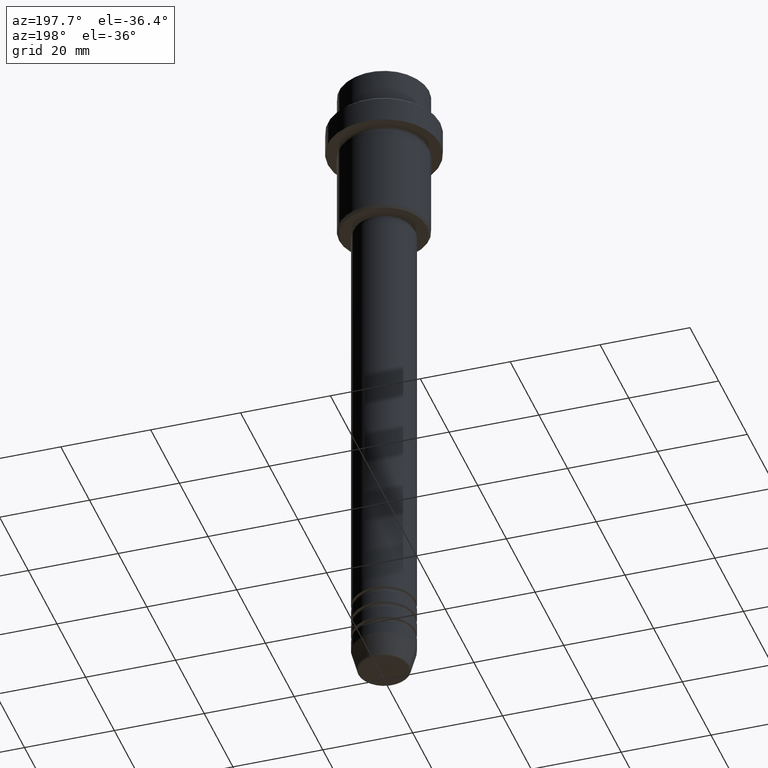
[diagram: clean part render]
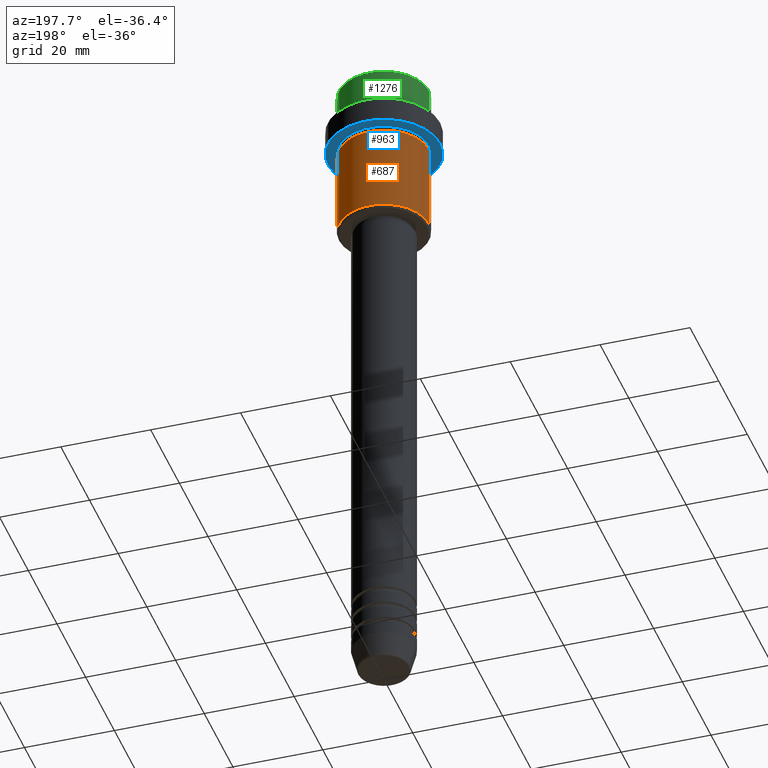
[diagram: same view with three faces highlighted in distinct colors, each labeled with its STEP entity id]
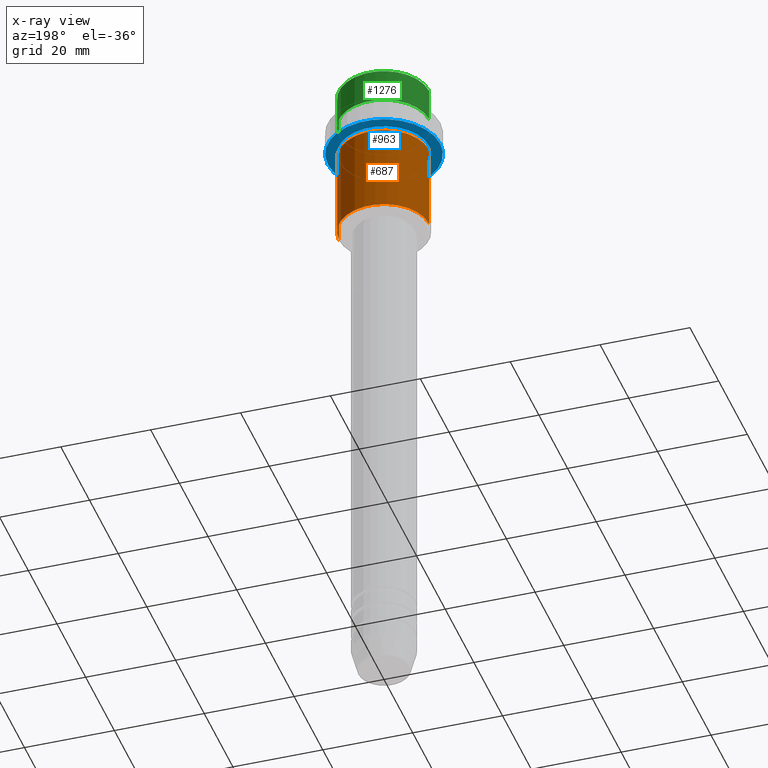
[diagram: x-ray of the same camera — body ghosted, the three highlighted faces saturated]
A machine part, auxiliary view with three faces highlighted in distinct colors.
The next image is the same camera in x-ray (body ghosted, the three faces saturated) — at least one of them is partly hidden behind the body in this view.
Their STEP definitions:

[orange] entity #687 — the highlighted cylindrical surface (partial cylindrical patch) has radius 10 mm, axis along (-0, -0, 1).
#49 = LINE ( 'NONE', #816, #1339 ) ;
#78 = VERTEX_POINT ( 'NONE', #785 ) ;
#82 = AXIS2_PLACEMENT_3D ( 'NONE', #610, #1057, #1042 ) ;
#83 = DIRECTION ( 'NONE',  ( -0.000000000000000000, -0.000000000000000000, 1.000000000000000000 ) ) ;
#130 = CARTESIAN_POINT ( 'NONE',  ( 10.00000000000000000, 0.000000000000000000, -35.49999999999995737 ) ) ;
#131 = ORIENTED_EDGE ( 'NONE', *, *, #991, .T. ) ;
#177 = ORIENTED_EDGE ( 'NONE', *, *, #980, .T. ) ;
#276 = LINE ( 'NONE', #692, #716 ) ;
#281 = AXIS2_PLACEMENT_3D ( 'NONE', #729, #83, #520 ) ;
#332 = AXIS2_PLACEMENT_3D ( 'NONE', #381, #1164, #1140 ) ;
#381 = CARTESIAN_POINT ( 'NONE',  ( 0.000000000000000000, 0.000000000000000000, -16.00000000000000000 ) ) ;
#520 = DIRECTION ( 'NONE',  ( 1.000000000000000000, 0.000000000000000000, 0.000000000000000000 ) ) ;
#586 = EDGE_CURVE ( 'NONE', #78, #1145, #1252, .T. ) ;
#591 = DIRECTION ( 'NONE',  ( -0.000000000000000000, -0.000000000000000000, 1.000000000000000000 ) ) ;
#600 = DIRECTION ( 'NONE',  ( -0.000000000000000000, -0.000000000000000000, 1.000000000000000000 ) ) ;
#610 = CARTESIAN_POINT ( 'NONE',  ( 0.000000000000000000, 0.000000000000000000, -35.49999999999995737 ) ) ;
#614 = EDGE_CURVE ( 'NONE', #1357, #78, #49, .T. ) ;
#623 = CARTESIAN_POINT ( 'NONE',  ( -10.00000000000000000, 1.224646799147353256E-15, -35.49999999999995737 ) ) ;
#639 = FACE_OUTER_BOUND ( 'NONE', #1414, .T. ) ;
#666 = ORIENTED_EDGE ( 'NONE', *, *, #586, .F. ) ;
#687 = ADVANCED_FACE ( 'NONE', ( #639 ), #1068, .T. ) ;
#692 = CARTESIAN_POINT ( 'NONE',  ( -10.00000000000000000, 1.224646799147353256E-15, 0.000000000000000000 ) ) ;
#701 = ORIENTED_EDGE ( 'NONE', *, *, #614, .F. ) ;
#716 = VECTOR ( 'NONE', #600, 1000.000000000000000 ) ;
#729 = CARTESIAN_POINT ( 'NONE',  ( 0.000000000000000000, 0.000000000000000000, 0.000000000000000000 ) ) ;
#785 = CARTESIAN_POINT ( 'NONE',  ( 10.00000000000000000, 0.000000000000000000, -16.00000000000000000 ) ) ;
#816 = CARTESIAN_POINT ( 'NONE',  ( 10.00000000000000000, 0.000000000000000000, 0.000000000000000000 ) ) ;
#856 = CARTESIAN_POINT ( 'NONE',  ( -10.00000000000000000, 1.224646799147353256E-15, -16.00000000000000000 ) ) ;
#980 = EDGE_CURVE ( 'NONE', #1401, #1145, #276, .T. ) ;
#991 = EDGE_CURVE ( 'NONE', #1357, #1401, #1411, .T. ) ;
#1042 = DIRECTION ( 'NONE',  ( -1.000000000000000000, 0.000000000000000000, 0.000000000000000000 ) ) ;
#1057 = DIRECTION ( 'NONE',  ( -0.000000000000000000, -0.000000000000000000, 1.000000000000000000 ) ) ;
#1068 = CYLINDRICAL_SURFACE ( 'NONE', #281, 10.00000000000000000 ) ;
#1140 = DIRECTION ( 'NONE',  ( 1.000000000000000000, 0.000000000000000000, 0.000000000000000000 ) ) ;
#1145 = VERTEX_POINT ( 'NONE', #856 ) ;
#1164 = DIRECTION ( 'NONE',  ( -0.000000000000000000, -0.000000000000000000, 1.000000000000000000 ) ) ;
#1252 = CIRCLE ( 'NONE', #332, 10.00000000000000000 ) ;
#1339 = VECTOR ( 'NONE', #591, 1000.000000000000000 ) ;
#1357 = VERTEX_POINT ( 'NONE', #130 ) ;
#1401 = VERTEX_POINT ( 'NONE', #623 ) ;
#1411 = CIRCLE ( 'NONE', #82, 10.00000000000000000 ) ;
#1414 = EDGE_LOOP ( 'NONE', ( #131, #177, #666, #701 ) ) ;

[blue] entity #963 — the highlighted planar face has unit normal (0, 0, -1).
#6 = VERTEX_POINT ( 'NONE', #1096 ) ;
#18 = DIRECTION ( 'NONE',  ( -1.000000000000000000, 0.000000000000000000, 0.000000000000000000 ) ) ;
#37 = AXIS2_PLACEMENT_3D ( 'NONE', #171, #1049, #814 ) ;
#42 = PLANE ( 'NONE',  #864 ) ;
#61 = CARTESIAN_POINT ( 'NONE',  ( 0.000000000000000000, 12.50000000000000000, -15.00000000000000000 ) ) ;
#171 = CARTESIAN_POINT ( 'NONE',  ( 0.000000000000000000, 0.000000000000000000, -15.00000000000000178 ) ) ;
#221 = DIRECTION ( 'NONE',  ( -0.000000000000000000, -0.000000000000000000, 1.000000000000000000 ) ) ;
#366 = VERTEX_POINT ( 'NONE', #1308 ) ;
#376 = EDGE_CURVE ( 'NONE', #433, #717, #1004, .T. ) ;
#379 = ORIENTED_EDGE ( 'NONE', *, *, #437, .T. ) ;
#425 = EDGE_LOOP ( 'NONE', ( #1305, #379 ) ) ;
#433 = VERTEX_POINT ( 'NONE', #528 ) ;
#437 = EDGE_CURVE ( 'NONE', #6, #366, #691, .T. ) ;
#447 = CIRCLE ( 'NONE', #37, 12.50000000000000000 ) ;
#451 = DIRECTION ( 'NONE',  ( -0.000000000000000000, -0.000000000000000000, 1.000000000000000000 ) ) ;
#471 = EDGE_LOOP ( 'NONE', ( #1416, #1153 ) ) ;
#510 = CARTESIAN_POINT ( 'NONE',  ( 12.50000000000000000, 0.000000000000000000, -15.00000000000000178 ) ) ;
#528 = CARTESIAN_POINT ( 'NONE',  ( -12.50000000000000000, 1.530808498934191521E-15, -15.00000000000000178 ) ) ;
#648 = AXIS2_PLACEMENT_3D ( 'NONE', #1302, #1125, #982 ) ;
#649 = CARTESIAN_POINT ( 'NONE',  ( 0.000000000000000000, 0.000000000000000000, -15.00000000000000178 ) ) ;
#691 = CIRCLE ( 'NONE', #648, 9.999999999999994671 ) ;
#717 = VERTEX_POINT ( 'NONE', #510 ) ;
#814 = DIRECTION ( 'NONE',  ( 1.000000000000000000, 0.000000000000000000, 0.000000000000000000 ) ) ;
#821 = FACE_BOUND ( 'NONE', #425, .T. ) ;
#863 = DIRECTION ( 'NONE',  ( 1.000000000000000000, 0.000000000000000000, 0.000000000000000000 ) ) ;
#864 = AXIS2_PLACEMENT_3D ( 'NONE', #61, #1359, #1246 ) ;
#951 = EDGE_CURVE ( 'NONE', #717, #433, #447, .T. ) ;
#963 = ADVANCED_FACE ( 'NONE', ( #821, #1162 ), #42, .T. ) ;
#982 = DIRECTION ( 'NONE',  ( -1.000000000000000000, 0.000000000000000000, 0.000000000000000000 ) ) ;
#1004 = CIRCLE ( 'NONE', #1291, 12.50000000000000000 ) ;
#1013 = CARTESIAN_POINT ( 'NONE',  ( 0.000000000000000000, 0.000000000000000000, -15.00000000000000000 ) ) ;
#1033 = CIRCLE ( 'NONE', #1139, 9.999999999999994671 ) ;
#1049 = DIRECTION ( 'NONE',  ( -0.000000000000000000, -0.000000000000000000, 1.000000000000000000 ) ) ;
#1096 = CARTESIAN_POINT ( 'NONE',  ( 9.999999999999994671, 1.224646799147352665E-15, -15.00000000000000000 ) ) ;
#1125 = DIRECTION ( 'NONE',  ( -0.000000000000000000, -0.000000000000000000, 1.000000000000000000 ) ) ;
#1139 = AXIS2_PLACEMENT_3D ( 'NONE', #1013, #451, #18 ) ;
#1153 = ORIENTED_EDGE ( 'NONE', *, *, #376, .F. ) ;
#1162 = FACE_OUTER_BOUND ( 'NONE', #471, .T. ) ;
#1246 = DIRECTION ( 'NONE',  ( -1.000000000000000000, 0.000000000000000000, -0.000000000000000000 ) ) ;
#1248 = EDGE_CURVE ( 'NONE', #366, #6, #1033, .T. ) ;
#1291 = AXIS2_PLACEMENT_3D ( 'NONE', #649, #221, #863 ) ;
#1302 = CARTESIAN_POINT ( 'NONE',  ( 0.000000000000000000, 0.000000000000000000, -15.00000000000000000 ) ) ;
#1305 = ORIENTED_EDGE ( 'NONE', *, *, #1248, .T. ) ;
#1308 = CARTESIAN_POINT ( 'NONE',  ( -9.999999999999994671, 0.000000000000000000, -15.00000000000000000 ) ) ;
#1359 = DIRECTION ( 'NONE',  ( 0.000000000000000000, 0.000000000000000000, -1.000000000000000000 ) ) ;
#1416 = ORIENTED_EDGE ( 'NONE', *, *, #951, .F. ) ;

[green] entity #1276 — the highlighted cylindrical surface (partial cylindrical patch) has radius 10 mm, axis along (-0, -0, 1).
#24 = CARTESIAN_POINT ( 'NONE',  ( 0.000000000000000000, 0.000000000000000000, 0.000000000000000000 ) ) ;
#157 = ORIENTED_EDGE ( 'NONE', *, *, #318, .T. ) ;
#175 = EDGE_CURVE ( 'NONE', #1012, #948, #602, .T. ) ;
#262 = CARTESIAN_POINT ( 'NONE',  ( 0.000000000000000000, 0.000000000000000000, -7.999999999999998224 ) ) ;
#268 = EDGE_CURVE ( 'NONE', #948, #1245, #854, .T. ) ;
#308 = ORIENTED_EDGE ( 'NONE', *, *, #268, .T. ) ;
#318 = EDGE_CURVE ( 'NONE', #1245, #958, #417, .T. ) ;
#320 = DIRECTION ( 'NONE',  ( -0.000000000000000000, -0.000000000000000000, 1.000000000000000000 ) ) ;
#331 = FACE_OUTER_BOUND ( 'NONE', #1376, .T. ) ;
#402 = LINE ( 'NONE', #1403, #742 ) ;
#417 = CIRCLE ( 'NONE', #787, 9.999999999999998224 ) ;
#592 = DIRECTION ( 'NONE',  ( 1.000000000000000000, 0.000000000000000000, 0.000000000000000000 ) ) ;
#594 = CARTESIAN_POINT ( 'NONE',  ( -9.999999999999998224, 1.224646799147353059E-15, -7.999999999999998224 ) ) ;
#602 = CIRCLE ( 'NONE', #975, 9.999999999999998224 ) ;
#615 = DIRECTION ( 'NONE',  ( 0.000000000000000000, 0.000000000000000000, -1.000000000000000000 ) ) ;
#680 = EDGE_CURVE ( 'NONE', #1012, #958, #402, .T. ) ;
#733 = DIRECTION ( 'NONE',  ( 1.000000000000000000, 0.000000000000000000, 0.000000000000000000 ) ) ;
#742 = VECTOR ( 'NONE', #320, 1000.000000000000000 ) ;
#779 = CYLINDRICAL_SURFACE ( 'NONE', #1342, 9.999999999999998224 ) ;
#787 = AXIS2_PLACEMENT_3D ( 'NONE', #1283, #615, #733 ) ;
#849 = ORIENTED_EDGE ( 'NONE', *, *, #175, .T. ) ;
#854 = LINE ( 'NONE', #1055, #861 ) ;
#861 = VECTOR ( 'NONE', #1166, 1000.000000000000000 ) ;
#927 = CARTESIAN_POINT ( 'NONE',  ( 9.999999999999998224, 0.000000000000000000, -0.4999999999999970024 ) ) ;
#948 = VERTEX_POINT ( 'NONE', #594 ) ;
#958 = VERTEX_POINT ( 'NONE', #927 ) ;
#972 = ORIENTED_EDGE ( 'NONE', *, *, #680, .F. ) ;
#975 = AXIS2_PLACEMENT_3D ( 'NONE', #262, #1144, #592 ) ;
#993 = DIRECTION ( 'NONE',  ( 1.000000000000000000, 0.000000000000000000, 0.000000000000000000 ) ) ;
#1012 = VERTEX_POINT ( 'NONE', #1032 ) ;
#1032 = CARTESIAN_POINT ( 'NONE',  ( 9.999999999999998224, 0.000000000000000000, -7.999999999999998224 ) ) ;
#1055 = CARTESIAN_POINT ( 'NONE',  ( -9.999999999999998224, 1.224646799147353059E-15, 0.000000000000000000 ) ) ;
#1144 = DIRECTION ( 'NONE',  ( -0.000000000000000000, -0.000000000000000000, 1.000000000000000000 ) ) ;
#1166 = DIRECTION ( 'NONE',  ( -0.000000000000000000, -0.000000000000000000, 1.000000000000000000 ) ) ;
#1203 = DIRECTION ( 'NONE',  ( -0.000000000000000000, -0.000000000000000000, 1.000000000000000000 ) ) ;
#1213 = CARTESIAN_POINT ( 'NONE',  ( -9.999999999999998224, 1.224646799147353059E-15, -0.4999999999999970024 ) ) ;
#1245 = VERTEX_POINT ( 'NONE', #1213 ) ;
#1276 = ADVANCED_FACE ( 'NONE', ( #331 ), #779, .T. ) ;
#1283 = CARTESIAN_POINT ( 'NONE',  ( 0.000000000000000000, 0.000000000000000000, -0.4999999999999970024 ) ) ;
#1342 = AXIS2_PLACEMENT_3D ( 'NONE', #24, #1203, #993 ) ;
#1376 = EDGE_LOOP ( 'NONE', ( #849, #308, #157, #972 ) ) ;
#1403 = CARTESIAN_POINT ( 'NONE',  ( 9.999999999999998224, 0.000000000000000000, 0.000000000000000000 ) ) ;